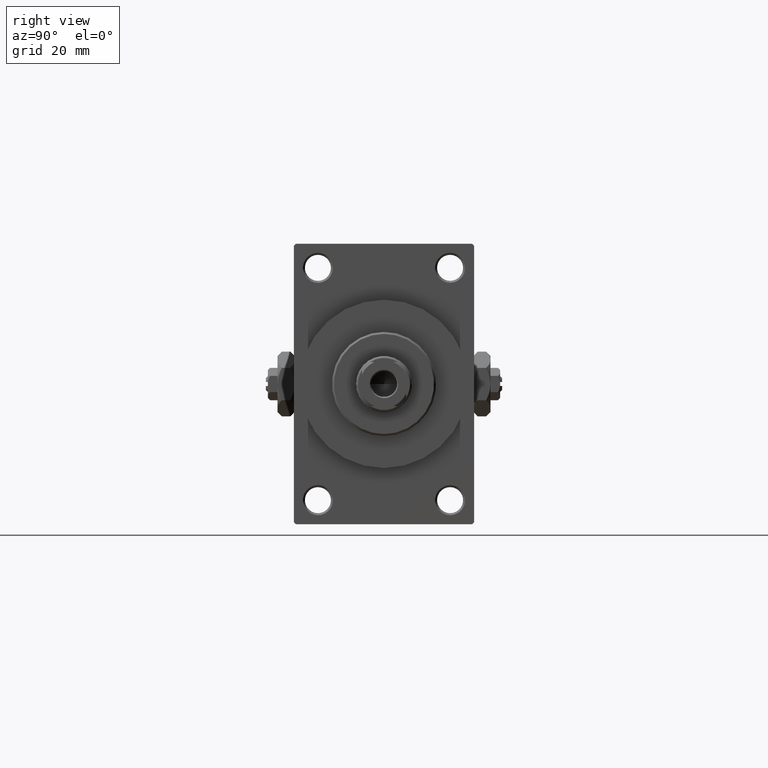
[diagram: clean part render]
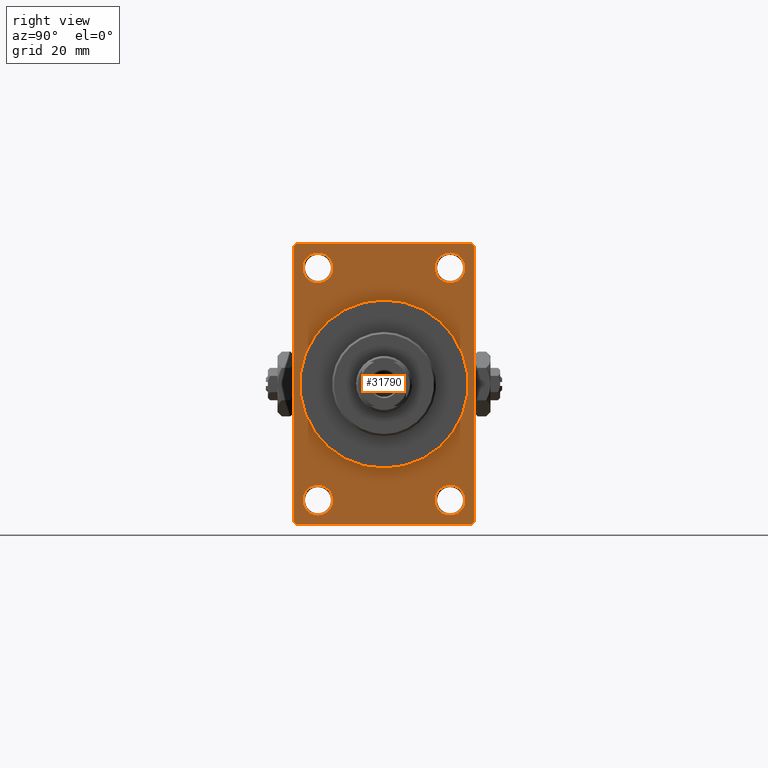
[diagram: same view with one face highlighted and labeled with its STEP entity id]
A machine part, right view. The second image highlights one B-rep face of the part: STEP entity #31790.
In plain terms, the highlighted planar face has unit normal (-1, 0, 0).
Its self-contained STEP definition (entity closure, byte-faithful):
#156 = CARTESIAN_POINT ( 'NONE',  ( 113.0000000000000142, -16.50000000000000000, -28.99999999999999289 ) ) ;
#219 = CARTESIAN_POINT ( 'NONE',  ( 113.0000000000000142, 21.99999999999999645, 35.00000000000000000 ) ) ;
#867 = CARTESIAN_POINT ( 'NONE',  ( 113.0000000000000142, -16.50000000000000000, -28.99999999999999289 ) ) ;
#1260 = ORIENTED_EDGE ( 'NONE', *, *, #24199, .T. ) ;
#1399 = VERTEX_POINT ( 'NONE', #12374 ) ;
#1516 = CIRCLE ( 'NONE', #2336, 3.750000000000069278 ) ;
#1577 = DIRECTION ( 'NONE',  ( 0.000000000000000000, 0.7071067811865376918, -0.7071067811865574537 ) ) ;
#1636 = AXIS2_PLACEMENT_3D ( 'NONE', #31966, #2212, #31732 ) ;
#1663 = DIRECTION ( 'NONE',  ( 1.000000000000000000, 0.000000000000000000, 0.000000000000000000 ) ) ;
#1863 = EDGE_CURVE ( 'NONE', #47434, #18648, #27536, .T. ) ;
#2193 = LINE ( 'NONE', #36114, #22717 ) ;
#2212 = DIRECTION ( 'NONE',  ( -1.000000000000000000, -0.000000000000000000, -0.000000000000000000 ) ) ;
#2336 = AXIS2_PLACEMENT_3D ( 'NONE', #33687, #26073, #17737 ) ;
#2995 = CARTESIAN_POINT ( 'NONE',  ( 113.0000000000000142, 22.49999999999999645, -34.50000000000000000 ) ) ;
#3598 = ORIENTED_EDGE ( 'NONE', *, *, #37945, .F. ) ;
#3622 = AXIS2_PLACEMENT_3D ( 'NONE', #20232, #41891, #38195 ) ;
#3932 = CIRCLE ( 'NONE', #47125, 21.00000000000000000 ) ;
#3939 = VERTEX_POINT ( 'NONE', #16929 ) ;
#3960 = CARTESIAN_POINT ( 'NONE',  ( 113.0000000000000142, 16.50000000000000000, -32.75000000000007105 ) ) ;
#4044 = EDGE_CURVE ( 'NONE', #16673, #5334, #23674, .T. ) ;
#4083 = DIRECTION ( 'NONE',  ( -1.000000000000000000, -0.000000000000000000, -0.000000000000000000 ) ) ;
#4891 = DIRECTION ( 'NONE',  ( -1.000000000000000000, -0.000000000000000000, -0.000000000000000000 ) ) ;
#5334 = VERTEX_POINT ( 'NONE', #12129 ) ;
#5780 = FACE_BOUND ( 'NONE', #27597, .T. ) ;
#5873 = LINE ( 'NONE', #16938, #30906 ) ;
#6248 = CARTESIAN_POINT ( 'NONE',  ( 113.0000000000000142, -21.99999999999997513, -35.00000000000000000 ) ) ;
#6269 = DIRECTION ( 'NONE',  ( -0.000000000000000000, 0.000000000000000000, 1.000000000000000000 ) ) ;
#6271 = VERTEX_POINT ( 'NONE', #37694 ) ;
#6411 = CARTESIAN_POINT ( 'NONE',  ( 113.0000000000000142, 22.49999999999999645, 34.50000000000000000 ) ) ;
#7321 = DIRECTION ( 'NONE',  ( 0.000000000000000000, 0.000000000000000000, -1.000000000000000000 ) ) ;
#7869 = AXIS2_PLACEMENT_3D ( 'NONE', #8761, #45629, #15659 ) ;
#7970 = ORIENTED_EDGE ( 'NONE', *, *, #16360, .T. ) ;
#8388 = CARTESIAN_POINT ( 'NONE',  ( 113.0000000000000142, -22.50000000000000355, 34.50000000000000000 ) ) ;
#8761 = CARTESIAN_POINT ( 'NONE',  ( 113.0000000000000142, 16.50000000000000000, 29.00000000000000355 ) ) ;
#9302 = CIRCLE ( 'NONE', #22633, 21.00000000000000000 ) ;
#10211 = FACE_OUTER_BOUND ( 'NONE', #39537, .T. ) ;
#10384 = EDGE_CURVE ( 'NONE', #44671, #37505, #2193, .T. ) ;
#10503 = CARTESIAN_POINT ( 'NONE',  ( 113.0000000000000142, -21.99999999999998934, 35.00000000000000000 ) ) ;
#10600 = EDGE_CURVE ( 'NONE', #27528, #44671, #33884, .T. ) ;
#11294 = DIRECTION ( 'NONE',  ( 0.000000000000000000, 0.000000000000000000, 1.000000000000000000 ) ) ;
#11452 = DIRECTION ( 'NONE',  ( 0.000000000000000000, 0.000000000000000000, 1.000000000000000000 ) ) ;
#11478 = VERTEX_POINT ( 'NONE', #20396 ) ;
#11878 = VECTOR ( 'NONE', #17753, 1000.000000000000114 ) ;
#12117 = VERTEX_POINT ( 'NONE', #13833 ) ;
#12129 = CARTESIAN_POINT ( 'NONE',  ( 113.0000000000000142, -16.50000000000000000, 32.75000000000007816 ) ) ;
#12221 = LINE ( 'NONE', #30911, #26003 ) ;
#12374 = CARTESIAN_POINT ( 'NONE',  ( 113.0000000000000142, 0.000000000000000000, 21.00000000000000000 ) ) ;
#13243 = DIRECTION ( 'NONE',  ( 0.000000000000000000, 0.000000000000000000, -1.000000000000000000 ) ) ;
#13406 = DIRECTION ( 'NONE',  ( -1.000000000000000000, 0.000000000000000000, -0.000000000000000000 ) ) ;
#13516 = VECTOR ( 'NONE', #38053, 1000.000000000000000 ) ;
#13751 = EDGE_CURVE ( 'NONE', #5334, #16673, #1516, .T. ) ;
#13833 = CARTESIAN_POINT ( 'NONE',  ( 113.0000000000000142, -22.50000000000000355, -34.49999999999997158 ) ) ;
#14948 = LINE ( 'NONE', #23055, #13516 ) ;
#15084 = ORIENTED_EDGE ( 'NONE', *, *, #10600, .T. ) ;
#15659 = DIRECTION ( 'NONE',  ( 0.000000000000000000, 0.000000000000000000, 1.000000000000000000 ) ) ;
#15688 = DIRECTION ( 'NONE',  ( 0.000000000000000000, -0.7071067811865474617, 0.7071067811865474617 ) ) ;
#16360 = EDGE_CURVE ( 'NONE', #3939, #29847, #29085, .T. ) ;
#16673 = VERTEX_POINT ( 'NONE', #40387 ) ;
#16929 = CARTESIAN_POINT ( 'NONE',  ( 113.0000000000000142, 16.50000000000000000, 25.24999999999993250 ) ) ;
#16938 = CARTESIAN_POINT ( 'NONE',  ( 113.0000000000000142, -22.50000000000000355, 35.00000000000000000 ) ) ;
#17055 = CARTESIAN_POINT ( 'NONE',  ( 113.0000000000000142, -22.50000000000000355, 34.50000000000000000 ) ) ;
#17332 = FACE_BOUND ( 'NONE', #43377, .T. ) ;
#17737 = DIRECTION ( 'NONE',  ( 0.000000000000000000, 0.000000000000000000, 1.000000000000000000 ) ) ;
#17753 = DIRECTION ( 'NONE',  ( -0.000000000000000000, 0.7071067811865474617, 0.7071067811865474617 ) ) ;
#18417 = EDGE_CURVE ( 'NONE', #12117, #21561, #34291, .T. ) ;
#18509 = EDGE_CURVE ( 'NONE', #34230, #44868, #26330, .T. ) ;
#18648 = VERTEX_POINT ( 'NONE', #3960 ) ;
#18818 = VECTOR ( 'NONE', #15688, 1000.000000000000114 ) ;
#19635 = DIRECTION ( 'NONE',  ( 0.000000000000000000, 0.000000000000000000, 1.000000000000000000 ) ) ;
#20232 = CARTESIAN_POINT ( 'NONE',  ( 113.0000000000000142, 16.50000000000000000, -28.99999999999999289 ) ) ;
#20327 = DIRECTION ( 'NONE',  ( 0.000000000000000000, 0.000000000000000000, -1.000000000000000000 ) ) ;
#20396 = CARTESIAN_POINT ( 'NONE',  ( 113.0000000000000142, -16.50000000000000000, -25.24999999999992184 ) ) ;
#21440 = EDGE_CURVE ( 'NONE', #11478, #6271, #22961, .T. ) ;
#21474 = EDGE_LOOP ( 'NONE', ( #7970, #22278 ) ) ;
#21561 = VERTEX_POINT ( 'NONE', #6248 ) ;
#22278 = ORIENTED_EDGE ( 'NONE', *, *, #39781, .T. ) ;
#22586 = CARTESIAN_POINT ( 'NONE',  ( 113.0000000000000142, 16.50000000000000000, 29.00000000000000355 ) ) ;
#22633 = AXIS2_PLACEMENT_3D ( 'NONE', #39014, #1663, #20327 ) ;
#22717 = VECTOR ( 'NONE', #32189, 1000.000000000000000 ) ;
#22961 = CIRCLE ( 'NONE', #32419, 3.750000000000076383 ) ;
#23055 = CARTESIAN_POINT ( 'NONE',  ( 113.0000000000000142, 22.49999999999999645, 35.00000000000000000 ) ) ;
#23098 = CIRCLE ( 'NONE', #26228, 3.750000000000076383 ) ;
#23674 = CIRCLE ( 'NONE', #24482, 3.750000000000069278 ) ;
#24199 = EDGE_CURVE ( 'NONE', #31943, #12117, #5873, .T. ) ;
#24218 = PLANE ( 'NONE',  #27094 ) ;
#24289 = AXIS2_PLACEMENT_3D ( 'NONE', #22586, #29976, #11294 ) ;
#24432 = LINE ( 'NONE', #17055, #28318 ) ;
#24482 = AXIS2_PLACEMENT_3D ( 'NONE', #27507, #4891, #19635 ) ;
#24590 = EDGE_CURVE ( 'NONE', #6271, #11478, #23098, .T. ) ;
#25360 = CARTESIAN_POINT ( 'NONE',  ( 113.0000000000000142, 22.49999999999999645, -34.50000000000000000 ) ) ;
#25362 = ORIENTED_EDGE ( 'NONE', *, *, #45487, .F. ) ;
#26003 = VECTOR ( 'NONE', #27209, 1000.000000000000000 ) ;
#26073 = DIRECTION ( 'NONE',  ( -1.000000000000000000, -0.000000000000000000, -0.000000000000000000 ) ) ;
#26165 = VERTEX_POINT ( 'NONE', #46200 ) ;
#26228 = AXIS2_PLACEMENT_3D ( 'NONE', #867, #38703, #35250 ) ;
#26330 = LINE ( 'NONE', #2995, #11878 ) ;
#27094 = AXIS2_PLACEMENT_3D ( 'NONE', #43862, #13406, #6269 ) ;
#27098 = CARTESIAN_POINT ( 'NONE',  ( 113.0000000000000142, 16.50000000000000000, -25.24999999999992184 ) ) ;
#27160 = CARTESIAN_POINT ( 'NONE',  ( 113.0000000000000142, -21.99999999999998934, -35.00000000000000000 ) ) ;
#27209 = DIRECTION ( 'NONE',  ( 0.000000000000000000, -1.000000000000000000, 0.000000000000000000 ) ) ;
#27507 = CARTESIAN_POINT ( 'NONE',  ( 113.0000000000000142, -16.50000000000000000, 29.00000000000000711 ) ) ;
#27528 = VERTEX_POINT ( 'NONE', #6411 ) ;
#27536 = CIRCLE ( 'NONE', #1636, 3.750000000000076383 ) ;
#27597 = EDGE_LOOP ( 'NONE', ( #29768, #27973 ) ) ;
#27973 = ORIENTED_EDGE ( 'NONE', *, *, #21440, .T. ) ;
#28251 = ORIENTED_EDGE ( 'NONE', *, *, #10384, .T. ) ;
#28318 = VECTOR ( 'NONE', #47283, 1000.000000000000114 ) ;
#28648 = FACE_BOUND ( 'NONE', #42055, .T. ) ;
#28835 = ORIENTED_EDGE ( 'NONE', *, *, #42157, .T. ) ;
#29079 = ORIENTED_EDGE ( 'NONE', *, *, #18417, .T. ) ;
#29085 = CIRCLE ( 'NONE', #7869, 3.750000000000072831 ) ;
#29468 = DIRECTION ( 'NONE',  ( 1.000000000000000000, 0.000000000000000000, 0.000000000000000000 ) ) ;
#29768 = ORIENTED_EDGE ( 'NONE', *, *, #24590, .T. ) ;
#29847 = VERTEX_POINT ( 'NONE', #40644 ) ;
#29976 = DIRECTION ( 'NONE',  ( -1.000000000000000000, -0.000000000000000000, -0.000000000000000000 ) ) ;
#30070 = CARTESIAN_POINT ( 'NONE',  ( 113.0000000000000142, 21.99999999999999645, 35.00000000000000000 ) ) ;
#30319 = ORIENTED_EDGE ( 'NONE', *, *, #33552, .T. ) ;
#30454 = ORIENTED_EDGE ( 'NONE', *, *, #18509, .T. ) ;
#30693 = ORIENTED_EDGE ( 'NONE', *, *, #1863, .T. ) ;
#30719 = VECTOR ( 'NONE', #1577, 999.9999999999998863 ) ;
#30906 = VECTOR ( 'NONE', #13243, 1000.000000000000000 ) ;
#30911 = CARTESIAN_POINT ( 'NONE',  ( 113.0000000000000142, 22.49999999999999645, -35.00000000000000000 ) ) ;
#31732 = DIRECTION ( 'NONE',  ( 0.000000000000000000, 0.000000000000000000, 1.000000000000000000 ) ) ;
#31790 = ADVANCED_FACE ( 'NONE', ( #28648, #5780, #39701, #43387, #17332, #10211 ), #24218, .F. ) ;
#31943 = VERTEX_POINT ( 'NONE', #8388 ) ;
#31966 = CARTESIAN_POINT ( 'NONE',  ( 113.0000000000000142, 16.50000000000000000, -28.99999999999999289 ) ) ;
#32189 = DIRECTION ( 'NONE',  ( 0.000000000000000000, -1.000000000000000000, 0.000000000000000000 ) ) ;
#32352 = CARTESIAN_POINT ( 'NONE',  ( 113.0000000000000142, 21.99999999999999645, -35.00000000000000000 ) ) ;
#32419 = AXIS2_PLACEMENT_3D ( 'NONE', #156, #4083, #11452 ) ;
#33552 = EDGE_CURVE ( 'NONE', #18648, #47434, #44424, .T. ) ;
#33687 = CARTESIAN_POINT ( 'NONE',  ( 113.0000000000000142, -16.50000000000000000, 29.00000000000000711 ) ) ;
#33884 = LINE ( 'NONE', #219, #18818 ) ;
#34230 = VERTEX_POINT ( 'NONE', #32352 ) ;
#34291 = LINE ( 'NONE', #27160, #30719 ) ;
#35250 = DIRECTION ( 'NONE',  ( 0.000000000000000000, 0.000000000000000000, 1.000000000000000000 ) ) ;
#36114 = CARTESIAN_POINT ( 'NONE',  ( 113.0000000000000142, 22.49999999999999645, 35.00000000000000000 ) ) ;
#37505 = VERTEX_POINT ( 'NONE', #10503 ) ;
#37694 = CARTESIAN_POINT ( 'NONE',  ( 113.0000000000000142, -16.50000000000000000, -32.75000000000007105 ) ) ;
#37945 = EDGE_CURVE ( 'NONE', #26165, #1399, #9302, .T. ) ;
#38053 = DIRECTION ( 'NONE',  ( 0.000000000000000000, 0.000000000000000000, -1.000000000000000000 ) ) ;
#38195 = DIRECTION ( 'NONE',  ( 0.000000000000000000, 0.000000000000000000, 1.000000000000000000 ) ) ;
#38703 = DIRECTION ( 'NONE',  ( -1.000000000000000000, -0.000000000000000000, -0.000000000000000000 ) ) ;
#39014 = CARTESIAN_POINT ( 'NONE',  ( 113.0000000000000142, 0.000000000000000000, 0.000000000000000000 ) ) ;
#39537 = EDGE_LOOP ( 'NONE', ( #1260, #29079, #45604, #30454, #25362, #15084, #28251, #28835 ) ) ;
#39701 = FACE_BOUND ( 'NONE', #43390, .T. ) ;
#39781 = EDGE_CURVE ( 'NONE', #29847, #3939, #40741, .T. ) ;
#40387 = CARTESIAN_POINT ( 'NONE',  ( 113.0000000000000142, -16.50000000000000000, 25.24999999999993960 ) ) ;
#40644 = CARTESIAN_POINT ( 'NONE',  ( 113.0000000000000142, 16.50000000000000000, 32.75000000000007816 ) ) ;
#40741 = CIRCLE ( 'NONE', #24289, 3.750000000000072831 ) ;
#41546 = EDGE_CURVE ( 'NONE', #1399, #26165, #3932, .T. ) ;
#41891 = DIRECTION ( 'NONE',  ( -1.000000000000000000, -0.000000000000000000, -0.000000000000000000 ) ) ;
#42055 = EDGE_LOOP ( 'NONE', ( #46335, #47169 ) ) ;
#42157 = EDGE_CURVE ( 'NONE', #37505, #31943, #24432, .T. ) ;
#43377 = EDGE_LOOP ( 'NONE', ( #46837, #3598 ) ) ;
#43387 = FACE_BOUND ( 'NONE', #21474, .T. ) ;
#43390 = EDGE_LOOP ( 'NONE', ( #30319, #30693 ) ) ;
#43808 = EDGE_CURVE ( 'NONE', #34230, #21561, #12221, .T. ) ;
#43862 = CARTESIAN_POINT ( 'NONE',  ( 113.0000000000000142, 0.000000000000000000, 0.000000000000000000 ) ) ;
#44424 = CIRCLE ( 'NONE', #3622, 3.750000000000076383 ) ;
#44663 = CARTESIAN_POINT ( 'NONE',  ( 113.0000000000000142, 0.000000000000000000, 0.000000000000000000 ) ) ;
#44671 = VERTEX_POINT ( 'NONE', #30070 ) ;
#44868 = VERTEX_POINT ( 'NONE', #25360 ) ;
#45487 = EDGE_CURVE ( 'NONE', #27528, #44868, #14948, .T. ) ;
#45604 = ORIENTED_EDGE ( 'NONE', *, *, #43808, .F. ) ;
#45629 = DIRECTION ( 'NONE',  ( -1.000000000000000000, -0.000000000000000000, -0.000000000000000000 ) ) ;
#46200 = CARTESIAN_POINT ( 'NONE',  ( 113.0000000000000142, 2.571758278209441661E-15, -21.00000000000000000 ) ) ;
#46335 = ORIENTED_EDGE ( 'NONE', *, *, #4044, .T. ) ;
#46837 = ORIENTED_EDGE ( 'NONE', *, *, #41546, .F. ) ;
#47125 = AXIS2_PLACEMENT_3D ( 'NONE', #44663, #29468, #7321 ) ;
#47169 = ORIENTED_EDGE ( 'NONE', *, *, #13751, .T. ) ;
#47283 = DIRECTION ( 'NONE',  ( -0.000000000000000000, -0.7071067811865474617, -0.7071067811865474617 ) ) ;
#47434 = VERTEX_POINT ( 'NONE', #27098 ) ;